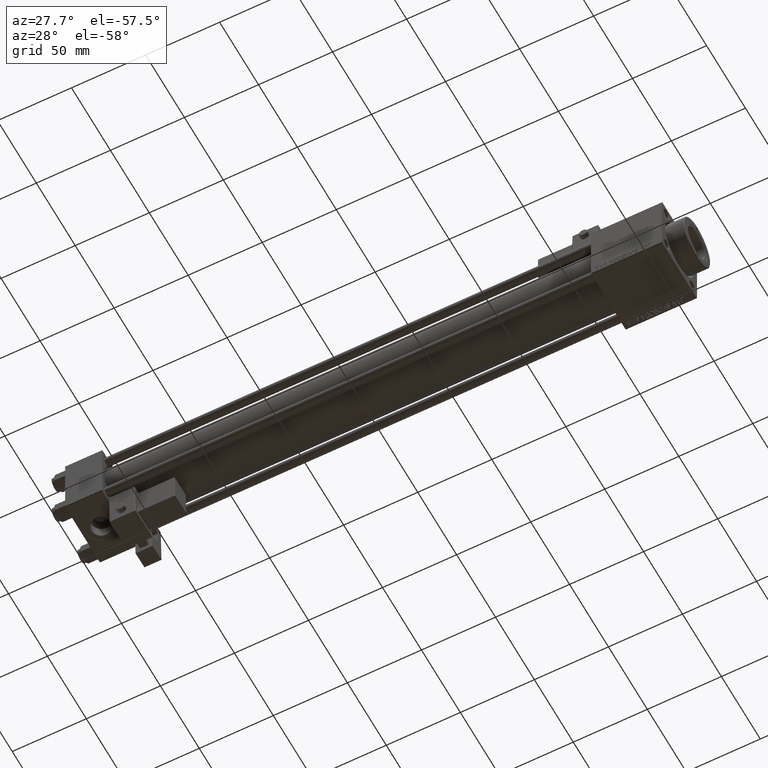
[diagram: clean part render]
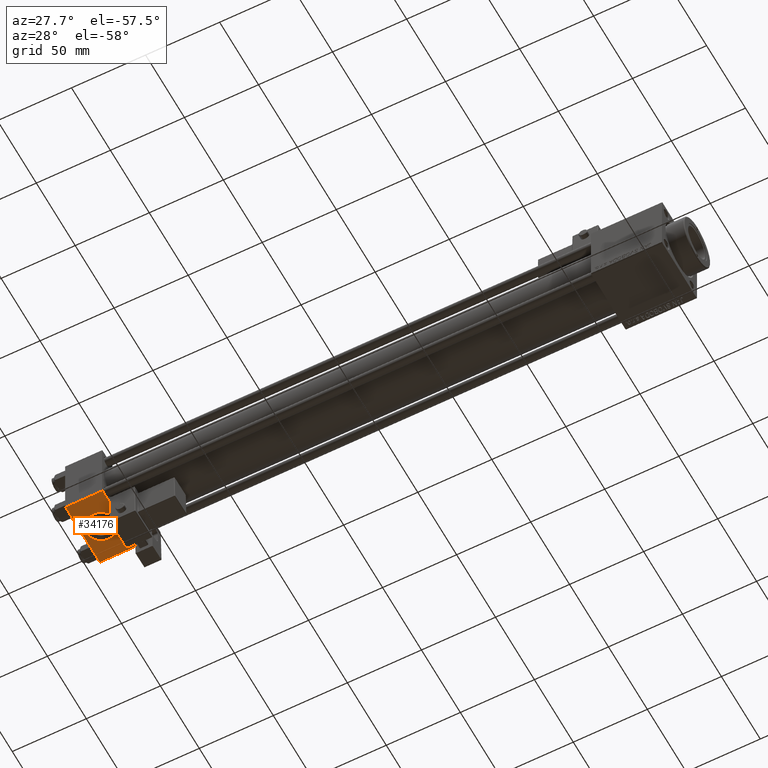
[diagram: same view with one face highlighted and labeled with its STEP entity id]
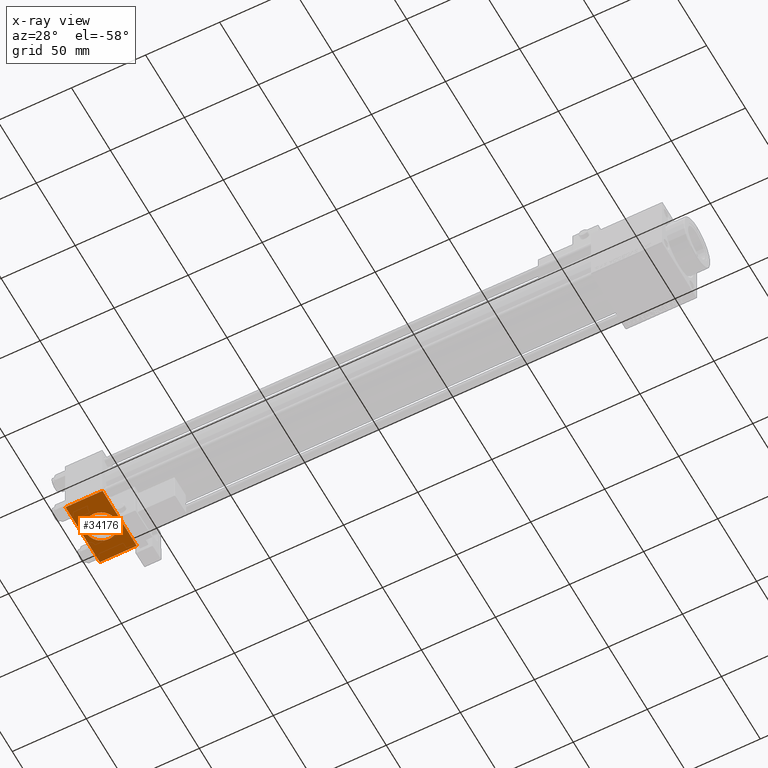
[diagram: x-ray of the same camera — body ghosted, the highlighted face saturated]
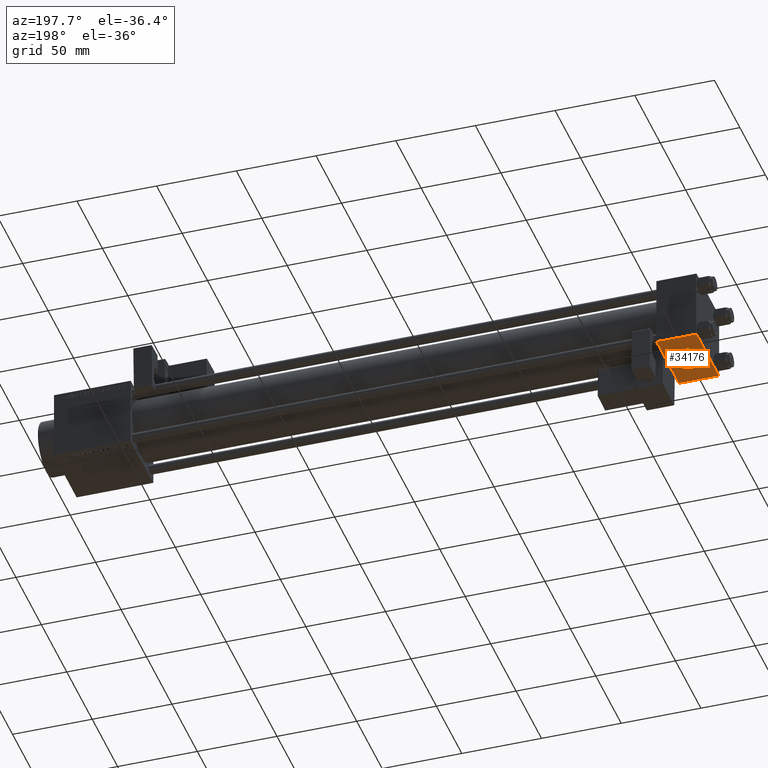
[diagram: same view with one face highlighted and labeled with its STEP entity id]
A machine part, auxiliary view. The second image highlights one B-rep face of the part: STEP entity #34176.
The next image is the same camera in x-ray: the body ghosted, the highlighted face saturated — about 0% of this face is hidden behind the body in this view.
A second angle (auxiliary view) of the same face is appended — the face is thin or edge-on in the first view.
In plain terms, the highlighted planar face has unit normal (0, 0, -1).
Its self-contained STEP definition (entity closure, byte-faithful):
#1266 = DIRECTION ( 'NONE',  ( 0.000000000000000000, -1.734723475976806848E-16, -1.000000000000000000 ) ) ;
#2439 = EDGE_CURVE ( 'NONE', #37235, #18297, #48233, .T. ) ;
#2628 = EDGE_CURVE ( 'NONE', #18297, #25807, #9708, .T. ) ;
#2685 = CARTESIAN_POINT ( 'NONE',  ( 0.000000000000000000, -21.99999999999998579, -22.50000000000000711 ) ) ;
#6516 = PLANE ( 'NONE',  #7516 ) ;
#7516 = AXIS2_PLACEMENT_3D ( 'NONE', #10272, #27169, #43520 ) ;
#8002 = LINE ( 'NONE', #47323, #31600 ) ;
#9708 = LINE ( 'NONE', #26077, #20364 ) ;
#10272 = CARTESIAN_POINT ( 'NONE',  ( 25.00000000000000000, 22.50000000000000000, -22.49999999999999645 ) ) ;
#11059 = EDGE_CURVE ( 'NONE', #37235, #23409, #8002, .T. ) ;
#11311 = VERTEX_POINT ( 'NONE', #46464 ) ;
#13639 = ORIENTED_EDGE ( 'NONE', *, *, #24487, .F. ) ;
#17479 = DIRECTION ( 'NONE',  ( 0.000000000000000000, -1.000000000000000000, -2.312964634635742957E-16 ) ) ;
#18297 = VERTEX_POINT ( 'NONE', #23252 ) ;
#20364 = VECTOR ( 'NONE', #17479, 1000.000000000000000 ) ;
#21395 = DIRECTION ( 'NONE',  ( 0.000000000000000000, -1.000000000000000000, -2.312964634635742957E-16 ) ) ;
#22064 = EDGE_LOOP ( 'NONE', ( #33892, #38331, #46634, #42736 ) ) ;
#23252 = CARTESIAN_POINT ( 'NONE',  ( 25.00000000000000000, 21.99999999999999289, -22.49999999999999645 ) ) ;
#23409 = VERTEX_POINT ( 'NONE', #44952 ) ;
#24123 = CARTESIAN_POINT ( 'NONE',  ( 0.000000000000000000, 21.99999999999999289, -22.49999999999999645 ) ) ;
#24475 = EDGE_LOOP ( 'NONE', ( #37503, #13639 ) ) ;
#24487 = EDGE_CURVE ( 'NONE', #38306, #11311, #49102, .T. ) ;
#25359 = DIRECTION ( 'NONE',  ( 0.000000000000000000, 1.000000000000000000, 0.000000000000000000 ) ) ;
#25807 = VERTEX_POINT ( 'NONE', #29534 ) ;
#26077 = CARTESIAN_POINT ( 'NONE',  ( 25.00000000000000000, 22.50000000000000000, -22.49999999999999645 ) ) ;
#27116 = LINE ( 'NONE', #2685, #28822 ) ;
#27169 = DIRECTION ( 'NONE',  ( 0.000000000000000000, 2.312964634635742957E-16, -1.000000000000000000 ) ) ;
#27708 = AXIS2_PLACEMENT_3D ( 'NONE', #37492, #1266, #38282 ) ;
#28822 = VECTOR ( 'NONE', #51248, 1000.000000000000000 ) ;
#28867 = DIRECTION ( 'NONE',  ( 0.000000000000000000, -1.734723475976806848E-16, -1.000000000000000000 ) ) ;
#29534 = CARTESIAN_POINT ( 'NONE',  ( 25.00000000000000000, -21.99999999999997158, -22.50000000000000711 ) ) ;
#31189 = EDGE_CURVE ( 'NONE', #25807, #23409, #27116, .T. ) ;
#31600 = VECTOR ( 'NONE', #21395, 1000.000000000000000 ) ;
#31922 = CIRCLE ( 'NONE', #38758, 10.00000000000000178 ) ;
#33892 = ORIENTED_EDGE ( 'NONE', *, *, #11059, .F. ) ;
#34176 = ADVANCED_FACE ( 'NONE', ( #35751, #43258 ), #6516, .T. ) ;
#35751 = FACE_BOUND ( 'NONE', #24475, .T. ) ;
#37235 = VERTEX_POINT ( 'NONE', #24123 ) ;
#37492 = CARTESIAN_POINT ( 'NONE',  ( 12.50000000000000178, 3.566060716959379104E-15, -22.50000000000000000 ) ) ;
#37503 = ORIENTED_EDGE ( 'NONE', *, *, #38118, .F. ) ;
#38118 = EDGE_CURVE ( 'NONE', #11311, #38306, #31922, .T. ) ;
#38282 = DIRECTION ( 'NONE',  ( 0.000000000000000000, 1.000000000000000000, 0.000000000000000000 ) ) ;
#38306 = VERTEX_POINT ( 'NONE', #51355 ) ;
#38331 = ORIENTED_EDGE ( 'NONE', *, *, #2439, .T. ) ;
#38758 = AXIS2_PLACEMENT_3D ( 'NONE', #49498, #28867, #25359 ) ;
#39188 = VECTOR ( 'NONE', #44476, 1000.000000000000000 ) ;
#42736 = ORIENTED_EDGE ( 'NONE', *, *, #31189, .T. ) ;
#43258 = FACE_OUTER_BOUND ( 'NONE', #22064, .T. ) ;
#43520 = DIRECTION ( 'NONE',  ( 0.000000000000000000, 1.000000000000000000, 2.312964634635742957E-16 ) ) ;
#44476 = DIRECTION ( 'NONE',  ( 1.000000000000000000, 0.000000000000000000, 0.000000000000000000 ) ) ;
#44952 = CARTESIAN_POINT ( 'NONE',  ( 0.000000000000000000, -21.99999999999997158, -22.50000000000000711 ) ) ;
#46464 = CARTESIAN_POINT ( 'NONE',  ( 12.50000000000000178, 10.00000000000000533, -22.50000000000000000 ) ) ;
#46634 = ORIENTED_EDGE ( 'NONE', *, *, #2628, .T. ) ;
#47323 = CARTESIAN_POINT ( 'NONE',  ( 0.000000000000000000, 22.50000000000000000, -22.49999999999999645 ) ) ;
#48233 = LINE ( 'NONE', #48499, #39188 ) ;
#48499 = CARTESIAN_POINT ( 'NONE',  ( 25.00000000000000000, 21.99999999999999289, -22.49999999999999645 ) ) ;
#49102 = CIRCLE ( 'NONE', #27708, 10.00000000000000178 ) ;
#49498 = CARTESIAN_POINT ( 'NONE',  ( 12.50000000000000178, 3.566060716959379104E-15, -22.50000000000000000 ) ) ;
#51248 = DIRECTION ( 'NONE',  ( -1.000000000000000000, 0.000000000000000000, 0.000000000000000000 ) ) ;
#51355 = CARTESIAN_POINT ( 'NONE',  ( 12.50000000000000355, -9.999999999999998224, -22.50000000000000000 ) ) ;